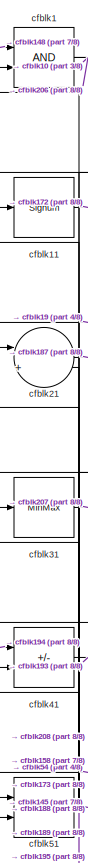
[diagram: root canvas - part 1/8, top left region]
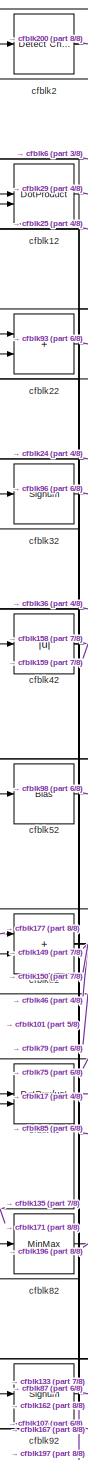
[diagram: root canvas - part 2/8, top left region]
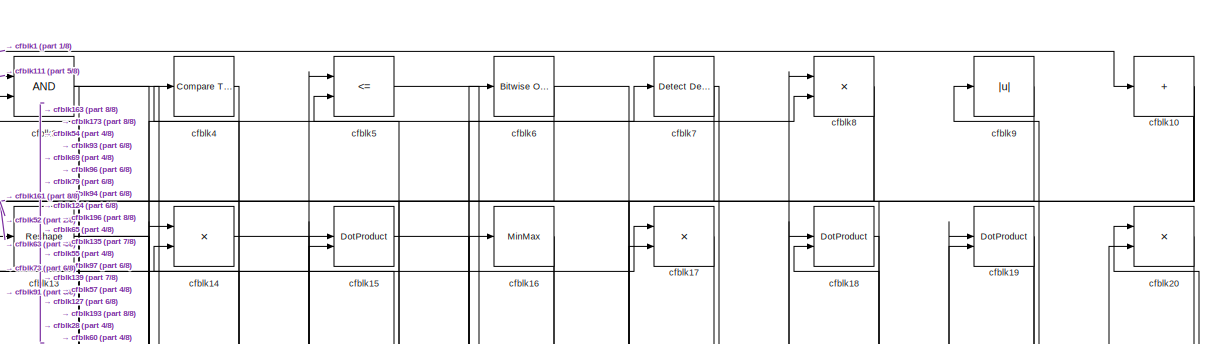
[diagram: root canvas - part 3/8, full width, top band]
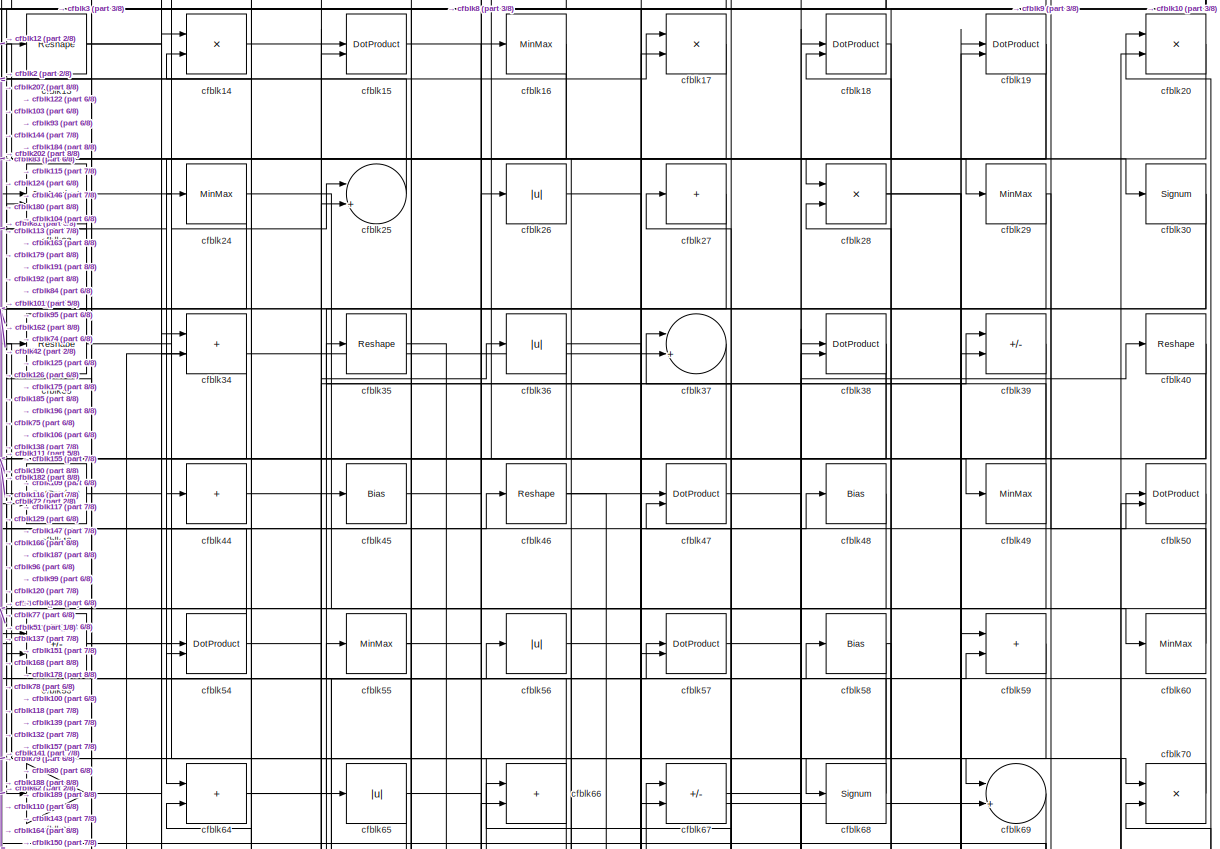
[diagram: root canvas - part 4/8, full width, top band]
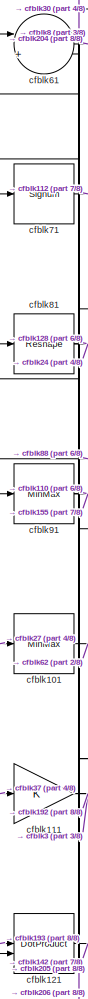
[diagram: root canvas - part 5/8, middle left region]
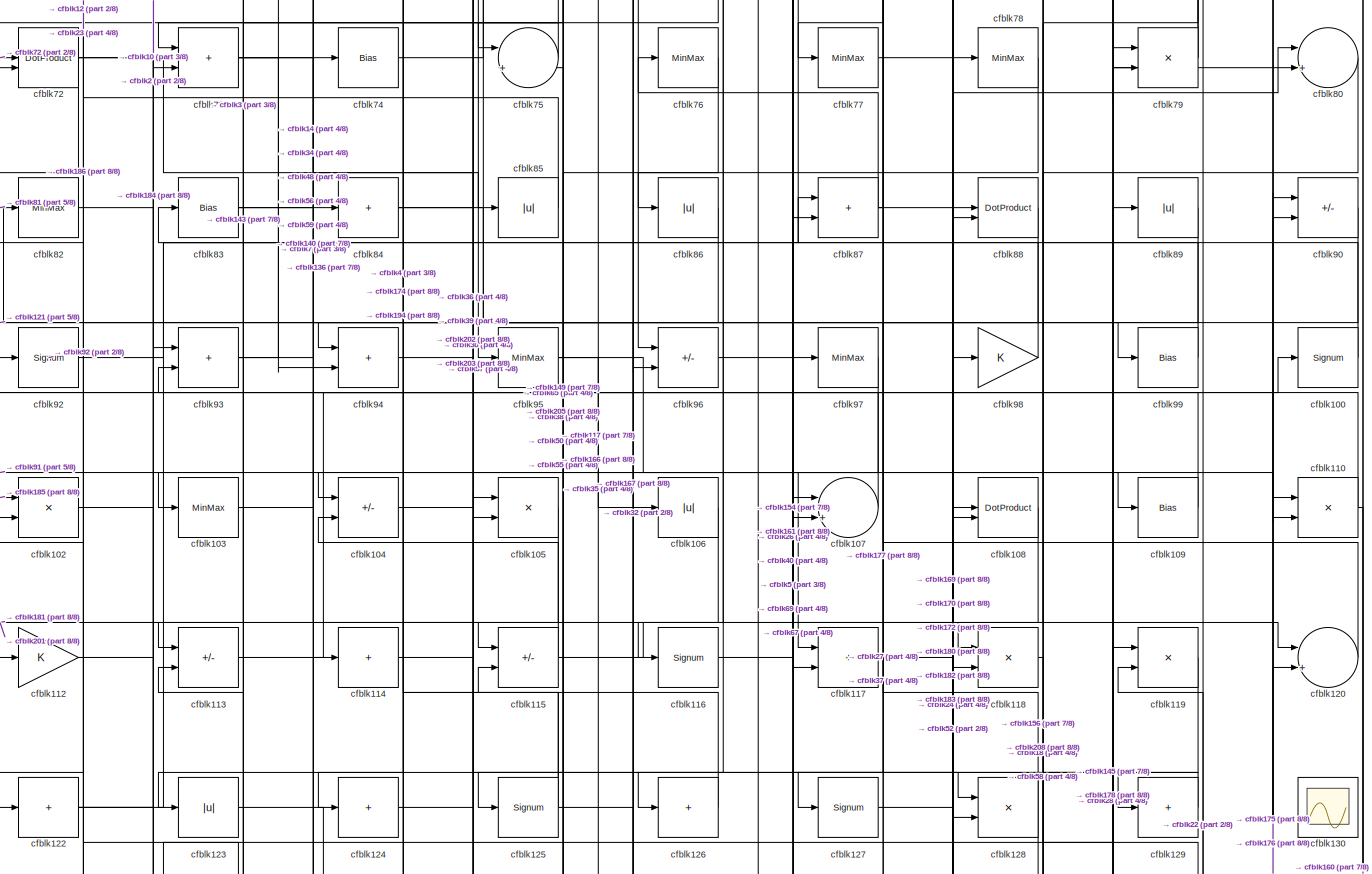
[diagram: root canvas - part 6/8, full width, middle band]
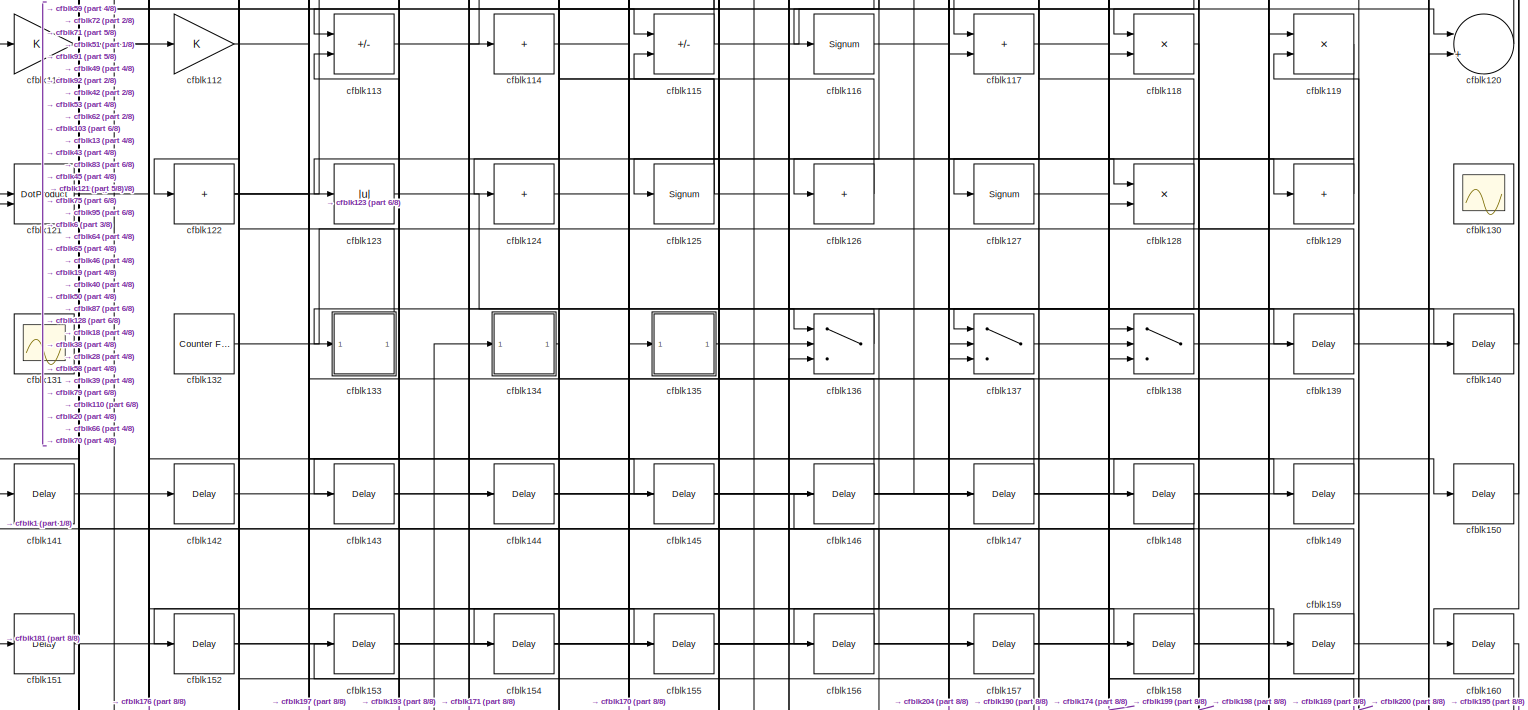
[diagram: root canvas - part 7/8, full width, middle band]
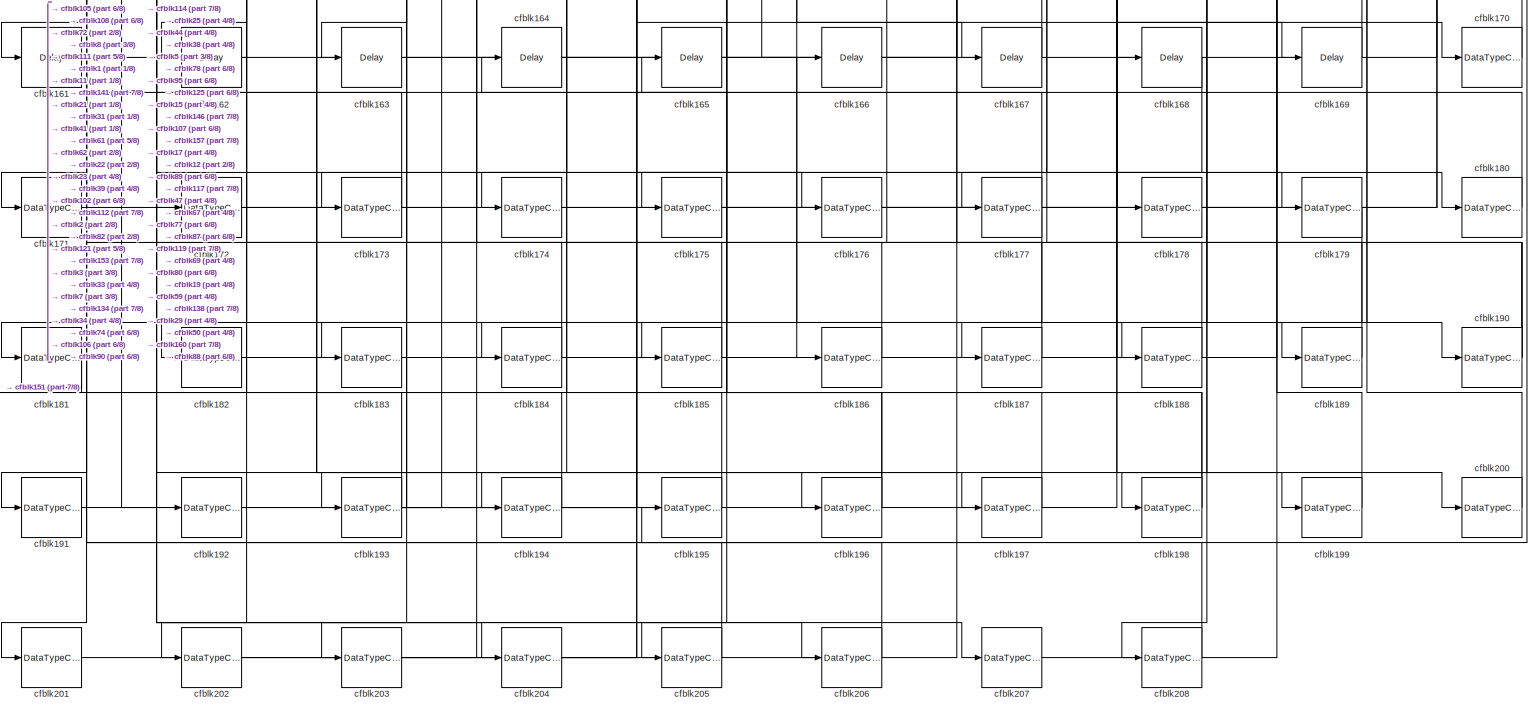
[diagram: root canvas - part 8/8, full width, bottom band]
MODEL slx_f1751e202889
KIND model
CONFIG AbsTol = auto
CONFIG EnableMultiTasking = off
CONFIG FixedStep = auto
CONFIG MaxStep = auto
CONFIG MinStep = auto
CONFIG RelTol = 1e-3
CONFIG SampleTimeConstraint = Unconstrained
CONFIG SolverName = VariableStepAuto
CONFIG StartTime = 0.0
CONFIG StopTime = 10.0
BLOCK [Logic] cfblk1
  AllPortsSameDT = off
  OutDataTypeStr = boolean
BLOCK [Sum] cfblk10
  IconShape = rectangular
  Inputs = +
BLOCK [Signum] cfblk100
BLOCK [MinMax] cfblk101
BLOCK [Product] cfblk102
  Inputs = */
  RndMeth = Zero
  SaturateOnIntegerOverflow = on
BLOCK [MinMax] cfblk103
BLOCK [Sum] cfblk104
  IconShape = rectangular
  Inputs = +-
BLOCK [Product] cfblk105
  Inputs = */
  RndMeth = Zero
  SaturateOnIntegerOverflow = on
BLOCK [Abs] cfblk106
  SaturateOnIntegerOverflow = off
BLOCK [Sum] cfblk107
  Inputs = |++
BLOCK [DotProduct] cfblk108
  OutDataTypeStr = Inherit: Inherit via internal rule
BLOCK [Bias] cfblk109
  Bias = 0.0
  SaturateOnIntegerOverflow = off
BLOCK [Signum] cfblk11
BLOCK [Product] cfblk110
  Inputs = */
  RndMeth = Zero
  SaturateOnIntegerOverflow = on
BLOCK [Gain] cfblk111
BLOCK [Gain] cfblk112
BLOCK [Sum] cfblk113
  IconShape = rectangular
  Inputs = +-
BLOCK [Sum] cfblk114
  IconShape = rectangular
  Inputs = +
BLOCK [Sum] cfblk115
  IconShape = rectangular
  Inputs = +-
BLOCK [Signum] cfblk116
BLOCK [Sum] cfblk117
  IconShape = rectangular
BLOCK [Product] cfblk118
  Inputs = */
  RndMeth = Zero
  SaturateOnIntegerOverflow = on
BLOCK [Product] cfblk119
  Inputs = */
  RndMeth = Zero
  SaturateOnIntegerOverflow = on
BLOCK [DotProduct] cfblk12
  OutDataTypeStr = Inherit: Inherit via internal rule
BLOCK [Sum] cfblk120
  Inputs = |++
BLOCK [DotProduct] cfblk121
  OutDataTypeStr = Inherit: Inherit via internal rule
BLOCK [Sum] cfblk122
  IconShape = rectangular
  Inputs = +
BLOCK [Abs] cfblk123
  SaturateOnIntegerOverflow = off
BLOCK [Sum] cfblk124
  IconShape = rectangular
  Inputs = +
BLOCK [Signum] cfblk125
BLOCK [Sum] cfblk126
  IconShape = rectangular
  Inputs = +
BLOCK [Signum] cfblk127
BLOCK [Product] cfblk128
  Inputs = */
  RndMeth = Zero
  SaturateOnIntegerOverflow = on
BLOCK [Sum] cfblk129
  IconShape = rectangular
  Inputs = +
BLOCK [Reshape] cfblk13
BLOCK [Scope] cfblk130
  Floating = on
  NumInputPorts = 1
  ScopeSpecificationString = Simulink.scopes.TimeScopeBlockCfg('CurrentConfiguration', extmgr.ConfigurationSet(extmgr.Configuration('Core','General UI',true,'FigureColor',[0.156862745098039 0.156862745098039 0.156862745098039]),extmgr.Configuration('Core','Source UI',true),extmgr.Configuration('Sources','WiredSimulink',true,'DataLoggingVariableName','ScopeData1','DataLoggingSaveFormat','StructureWithTime','DataLoggingLimitDat...<+2713ch>
BLOCK [Scope] cfblk131
  Floating = on
  NumInputPorts = 1
  ScopeSpecificationString = Simulink.scopes.TimeScopeBlockCfg('CurrentConfiguration', extmgr.ConfigurationSet(extmgr.Configuration('Core','General UI',true,'FigureColor',[0.156862745098039 0.156862745098039 0.156862745098039]),extmgr.Configuration('Core','Source UI',true),extmgr.Configuration('Sources','WiredSimulink',true,'DataLoggingVariableName','ScopeData1','DataLoggingSaveFormat','StructureWithTime','DataLoggingLimitDat...<+2713ch>
BLOCK [Reference] cfblk132  REF=hdlsllib/Sources/Counter
Free-Running
  SourceBlock = hdlsllib/Sources/Counter\nFree-Running
  SourceType = Counter Free-Running
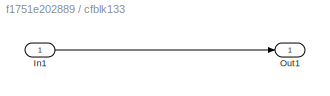
BLOCK [SubSystem] cfblk133
  LibrarySourceBlock = hdlsllib/Ports &\nSubsystems/Subsystem
BLOCK [Inport] cfblk133/In1
BLOCK [Outport] cfblk133/Out1
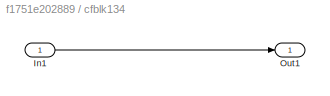
BLOCK [SubSystem] cfblk134
  LibrarySourceBlock = hdlsllib/Ports &\nSubsystems/Subsystem
BLOCK [Inport] cfblk134/In1
BLOCK [Outport] cfblk134/Out1
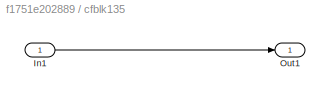
BLOCK [SubSystem] cfblk135
  LibrarySourceBlock = hdlsllib/Ports &\nSubsystems/Subsystem
BLOCK [Inport] cfblk135/In1
BLOCK [Outport] cfblk135/Out1
BLOCK [Switch] cfblk136
  InputSameDT = off
  SaturateOnIntegerOverflow = off
BLOCK [Switch] cfblk137
  InputSameDT = off
  SaturateOnIntegerOverflow = off
BLOCK [Switch] cfblk138
  InputSameDT = off
  SaturateOnIntegerOverflow = off
BLOCK [Delay] cfblk139
  InputPortMap = u0
  SampleTime = 1
BLOCK [Product] cfblk14
  Inputs = */
  RndMeth = Zero
  SaturateOnIntegerOverflow = on
BLOCK [Delay] cfblk140
  InputPortMap = u0
  SampleTime = 1
BLOCK [Delay] cfblk141
  InputPortMap = u0
  SampleTime = 1
BLOCK [Delay] cfblk142
  InputPortMap = u0
  SampleTime = 1
BLOCK [Delay] cfblk143
  InputPortMap = u0
  SampleTime = 1
BLOCK [Delay] cfblk144
  InputPortMap = u0
  SampleTime = 1
BLOCK [Delay] cfblk145
  InputPortMap = u0
  SampleTime = 1
BLOCK [Delay] cfblk146
  InputPortMap = u0
  SampleTime = 1
BLOCK [Delay] cfblk147
  InputPortMap = u0
  SampleTime = 1
BLOCK [Delay] cfblk148
  InputPortMap = u0
  SampleTime = 1
BLOCK [Delay] cfblk149
  InputPortMap = u0
  SampleTime = 1
BLOCK [DotProduct] cfblk15
  OutDataTypeStr = Inherit: Inherit via internal rule
BLOCK [Delay] cfblk150
  InputPortMap = u0
  SampleTime = 1
BLOCK [Delay] cfblk151
  InputPortMap = u0
  SampleTime = 1
BLOCK [Delay] cfblk152
  InputPortMap = u0
  SampleTime = 1
BLOCK [Delay] cfblk153
  InputPortMap = u0
  SampleTime = 1
BLOCK [Delay] cfblk154
  InputPortMap = u0
  SampleTime = 1
BLOCK [Delay] cfblk155
  InputPortMap = u0
  SampleTime = 1
BLOCK [Delay] cfblk156
  InputPortMap = u0
  SampleTime = 1
BLOCK [Delay] cfblk157
  InputPortMap = u0
  SampleTime = 1
BLOCK [Delay] cfblk158
  InputPortMap = u0
  SampleTime = 1
BLOCK [Delay] cfblk159
  InputPortMap = u0
  SampleTime = 1
BLOCK [MinMax] cfblk16
BLOCK [Delay] cfblk160
  InputPortMap = u0
  SampleTime = 1
BLOCK [Delay] cfblk161
  InputPortMap = u0
  SampleTime = 1
BLOCK [Delay] cfblk162
  InputPortMap = u0
  SampleTime = 1
BLOCK [Delay] cfblk163
  InputPortMap = u0
  SampleTime = 1
BLOCK [Delay] cfblk164
  InputPortMap = u0
  SampleTime = 1
BLOCK [Delay] cfblk165
  InputPortMap = u0
  SampleTime = 1
BLOCK [Delay] cfblk166
  InputPortMap = u0
  SampleTime = 1
BLOCK [Delay] cfblk167
  InputPortMap = u0
  SampleTime = 1
BLOCK [Delay] cfblk168
  InputPortMap = u0
  SampleTime = 1
BLOCK [Delay] cfblk169
  InputPortMap = u0
  SampleTime = 1
BLOCK [Product] cfblk17
  Inputs = */
  RndMeth = Zero
  SaturateOnIntegerOverflow = on
BLOCK [DataTypeConversion] cfblk170
  OutDataTypeStr = uint8
  RndMeth = Floor
  SaturateOnIntegerOverflow = off
BLOCK [DataTypeConversion] cfblk171
  OutDataTypeStr = uint8
  RndMeth = Floor
  SaturateOnIntegerOverflow = off
BLOCK [DataTypeConversion] cfblk172
  OutDataTypeStr = uint8
  RndMeth = Floor
  SaturateOnIntegerOverflow = off
BLOCK [DataTypeConversion] cfblk173
  OutDataTypeStr = uint8
  RndMeth = Floor
  SaturateOnIntegerOverflow = off
BLOCK [DataTypeConversion] cfblk174
  OutDataTypeStr = uint8
  RndMeth = Floor
  SaturateOnIntegerOverflow = off
BLOCK [DataTypeConversion] cfblk175
  OutDataTypeStr = uint8
  RndMeth = Floor
  SaturateOnIntegerOverflow = off
BLOCK [DataTypeConversion] cfblk176
  OutDataTypeStr = uint8
  RndMeth = Floor
  SaturateOnIntegerOverflow = off
BLOCK [DataTypeConversion] cfblk177
  RndMeth = Floor
  SaturateOnIntegerOverflow = off
BLOCK [DataTypeConversion] cfblk178
  OutDataTypeStr = uint8
  RndMeth = Floor
  SaturateOnIntegerOverflow = off
BLOCK [DataTypeConversion] cfblk179
  OutDataTypeStr = uint8
  RndMeth = Floor
  SaturateOnIntegerOverflow = off
BLOCK [DotProduct] cfblk18
  OutDataTypeStr = Inherit: Inherit via internal rule
BLOCK [DataTypeConversion] cfblk180
  OutDataTypeStr = uint8
  RndMeth = Floor
  SaturateOnIntegerOverflow = off
BLOCK [DataTypeConversion] cfblk181
  OutDataTypeStr = uint8
  RndMeth = Floor
  SaturateOnIntegerOverflow = off
BLOCK [DataTypeConversion] cfblk182
  OutDataTypeStr = uint8
  RndMeth = Floor
  SaturateOnIntegerOverflow = off
BLOCK [DataTypeConversion] cfblk183
  OutDataTypeStr = uint8
  RndMeth = Floor
  SaturateOnIntegerOverflow = off
BLOCK [DataTypeConversion] cfblk184
  RndMeth = Floor
  SaturateOnIntegerOverflow = off
BLOCK [DataTypeConversion] cfblk185
  OutDataTypeStr = uint8
  RndMeth = Floor
  SaturateOnIntegerOverflow = off
BLOCK [DataTypeConversion] cfblk186
  OutDataTypeStr = uint8
  RndMeth = Floor
  SaturateOnIntegerOverflow = off
BLOCK [DataTypeConversion] cfblk187
  OutDataTypeStr = uint8
  RndMeth = Floor
  SaturateOnIntegerOverflow = off
BLOCK [DataTypeConversion] cfblk188
  OutDataTypeStr = uint8
  RndMeth = Floor
  SaturateOnIntegerOverflow = off
BLOCK [DataTypeConversion] cfblk189
  OutDataTypeStr = uint8
  RndMeth = Floor
  SaturateOnIntegerOverflow = off
BLOCK [DotProduct] cfblk19
  OutDataTypeStr = Inherit: Inherit via internal rule
BLOCK [DataTypeConversion] cfblk190
  RndMeth = Floor
  SaturateOnIntegerOverflow = off
BLOCK [DataTypeConversion] cfblk191
  OutDataTypeStr = uint8
  RndMeth = Floor
  SaturateOnIntegerOverflow = off
BLOCK [DataTypeConversion] cfblk192
  OutDataTypeStr = uint8
  RndMeth = Floor
  SaturateOnIntegerOverflow = off
BLOCK [DataTypeConversion] cfblk193
  RndMeth = Floor
  SaturateOnIntegerOverflow = off
BLOCK [DataTypeConversion] cfblk194
  OutDataTypeStr = uint8
  RndMeth = Floor
  SaturateOnIntegerOverflow = off
BLOCK [DataTypeConversion] cfblk195
  OutDataTypeStr = uint8
  RndMeth = Floor
  SaturateOnIntegerOverflow = off
BLOCK [DataTypeConversion] cfblk196
  RndMeth = Floor
  SaturateOnIntegerOverflow = off
BLOCK [DataTypeConversion] cfblk197
  OutDataTypeStr = uint8
  RndMeth = Floor
  SaturateOnIntegerOverflow = off
BLOCK [DataTypeConversion] cfblk198
  RndMeth = Floor
  SaturateOnIntegerOverflow = off
BLOCK [DataTypeConversion] cfblk199
  OutDataTypeStr = uint8
  RndMeth = Floor
  SaturateOnIntegerOverflow = off
BLOCK [Reference] cfblk2  REF=simulink/Logic and Bit
Operations/Detect
Change
  LibrarySourceBlock = hdlsllib/Logic and Bit\nOperations/Detect\nChange
  SourceBlock = simulink/Logic and Bit\nOperations/Detect\nChange
  SourceType = Detect Change
BLOCK [Product] cfblk20
  Inputs = */
  RndMeth = Zero
  SaturateOnIntegerOverflow = on
BLOCK [DataTypeConversion] cfblk200
  OutDataTypeStr = uint8
  RndMeth = Floor
  SaturateOnIntegerOverflow = off
BLOCK [DataTypeConversion] cfblk201
  OutDataTypeStr = uint8
  RndMeth = Floor
  SaturateOnIntegerOverflow = off
BLOCK [DataTypeConversion] cfblk202
  OutDataTypeStr = uint8
  RndMeth = Floor
  SaturateOnIntegerOverflow = off
BLOCK [DataTypeConversion] cfblk203
  OutDataTypeStr = uint8
  RndMeth = Floor
  SaturateOnIntegerOverflow = off
BLOCK [DataTypeConversion] cfblk204
  OutDataTypeStr = uint8
  RndMeth = Floor
  SaturateOnIntegerOverflow = off
BLOCK [DataTypeConversion] cfblk205
  OutDataTypeStr = uint8
  RndMeth = Floor
  SaturateOnIntegerOverflow = off
BLOCK [DataTypeConversion] cfblk206
  OutDataTypeStr = uint8
  RndMeth = Floor
  SaturateOnIntegerOverflow = off
BLOCK [DataTypeConversion] cfblk207
  OutDataTypeStr = uint8
  RndMeth = Floor
  SaturateOnIntegerOverflow = off
BLOCK [DataTypeConversion] cfblk208
  OutDataTypeStr = uint8
  RndMeth = Floor
  SaturateOnIntegerOverflow = off
BLOCK [Sum] cfblk21
  Inputs = |++
BLOCK [Sum] cfblk22
  IconShape = rectangular
BLOCK [DotProduct] cfblk23
  OutDataTypeStr = Inherit: Inherit via internal rule
BLOCK [MinMax] cfblk24
BLOCK [Sum] cfblk25
  Inputs = |++
BLOCK [Abs] cfblk26
  SaturateOnIntegerOverflow = off
BLOCK [Sum] cfblk27
  IconShape = rectangular
  Inputs = +
BLOCK [Product] cfblk28
  Inputs = */
  RndMeth = Zero
  SaturateOnIntegerOverflow = on
BLOCK [MinMax] cfblk29
BLOCK [Logic] cfblk3
  AllPortsSameDT = off
  OutDataTypeStr = boolean
BLOCK [Signum] cfblk30
BLOCK [MinMax] cfblk31
BLOCK [Signum] cfblk32
BLOCK [Reshape] cfblk33
BLOCK [Sum] cfblk34
  IconShape = rectangular
BLOCK [Reshape] cfblk35
BLOCK [Abs] cfblk36
  SaturateOnIntegerOverflow = off
BLOCK [Sum] cfblk37
  Inputs = |++
BLOCK [DotProduct] cfblk38
  OutDataTypeStr = Inherit: Inherit via internal rule
BLOCK [Sum] cfblk39
  IconShape = rectangular
  Inputs = +-
BLOCK [Reference] cfblk4  REF=hdlsllib/Logic and Bit
Operations/Compare
To Constant
  SourceBlock = hdlsllib/Logic and Bit\nOperations/Compare\nTo Constant
  SourceType = Compare To Constant
BLOCK [Reshape] cfblk40
BLOCK [Sum] cfblk41
  IconShape = rectangular
  Inputs = +-
BLOCK [Abs] cfblk42
  SaturateOnIntegerOverflow = off
BLOCK [DotProduct] cfblk43
  OutDataTypeStr = Inherit: Inherit via internal rule
BLOCK [Sum] cfblk44
  IconShape = rectangular
  Inputs = +
BLOCK [Bias] cfblk45
  Bias = 0.0
  SaturateOnIntegerOverflow = off
BLOCK [Reshape] cfblk46
BLOCK [DotProduct] cfblk47
  OutDataTypeStr = Inherit: Inherit via internal rule
BLOCK [Bias] cfblk48
  Bias = 0.0
  SaturateOnIntegerOverflow = off
BLOCK [MinMax] cfblk49
BLOCK [RelationalOperator] cfblk5
  InputSameDT = off
  Operator = <=
  OutDataTypeStr = boolean
BLOCK [DotProduct] cfblk50
  OutDataTypeStr = Inherit: Inherit via internal rule
BLOCK [Product] cfblk51
  Inputs = */
  RndMeth = Zero
  SaturateOnIntegerOverflow = on
BLOCK [Bias] cfblk52
  Bias = 0.0
  SaturateOnIntegerOverflow = off
BLOCK [Sum] cfblk53
  IconShape = rectangular
  Inputs = +-
BLOCK [DotProduct] cfblk54
  OutDataTypeStr = Inherit: Inherit via internal rule
BLOCK [MinMax] cfblk55
BLOCK [Abs] cfblk56
  SaturateOnIntegerOverflow = off
BLOCK [DotProduct] cfblk57
  OutDataTypeStr = Inherit: Inherit via internal rule
BLOCK [Bias] cfblk58
  Bias = 0.0
  SaturateOnIntegerOverflow = off
BLOCK [Sum] cfblk59
  IconShape = rectangular
BLOCK [Reference] cfblk6  REF=simulink/Logic and Bit
Operations/Bitwise
Operator
  LibrarySourceBlock = hdlsllib/Logic and Bit\nOperations/Bitwise\nOperator
  SourceBlock = simulink/Logic and Bit\nOperations/Bitwise\nOperator
  SourceType = Bitwise Operator
BLOCK [MinMax] cfblk60
BLOCK [Sum] cfblk61
  Inputs = |++
BLOCK [Sum] cfblk62
  IconShape = rectangular
BLOCK [Gain] cfblk63
BLOCK [Sum] cfblk64
  IconShape = rectangular
BLOCK [Abs] cfblk65
  SaturateOnIntegerOverflow = off
BLOCK [Sum] cfblk66
  IconShape = rectangular
BLOCK [Sum] cfblk67
  IconShape = rectangular
  Inputs = +-
BLOCK [Signum] cfblk68
BLOCK [Sum] cfblk69
  Inputs = |++
BLOCK [Reference] cfblk7  REF=simulink/Logic and Bit
Operations/Detect
Decrease
  LibrarySourceBlock = hdlsllib/Logic and Bit\nOperations/Detect\nDecrease
  SourceBlock = simulink/Logic and Bit\nOperations/Detect\nDecrease
  SourceType = Detect Decrease
BLOCK [Product] cfblk70
  Inputs = */
  RndMeth = Zero
  SaturateOnIntegerOverflow = on
BLOCK [Signum] cfblk71
BLOCK [DotProduct] cfblk72
  OutDataTypeStr = Inherit: Inherit via internal rule
BLOCK [Sum] cfblk73
  IconShape = rectangular
BLOCK [Bias] cfblk74
  Bias = 0.0
  SaturateOnIntegerOverflow = off
BLOCK [Sum] cfblk75
  Inputs = |++
BLOCK [MinMax] cfblk76
BLOCK [MinMax] cfblk77
BLOCK [MinMax] cfblk78
BLOCK [Product] cfblk79
  Inputs = */
  RndMeth = Zero
  SaturateOnIntegerOverflow = on
BLOCK [Product] cfblk8
  Inputs = */
  RndMeth = Zero
  SaturateOnIntegerOverflow = on
BLOCK [Sum] cfblk80
  Inputs = |++
BLOCK [Reshape] cfblk81
BLOCK [MinMax] cfblk82
BLOCK [Bias] cfblk83
  Bias = 0.0
  SaturateOnIntegerOverflow = off
BLOCK [Sum] cfblk84
  IconShape = rectangular
  Inputs = +
BLOCK [Abs] cfblk85
  SaturateOnIntegerOverflow = off
BLOCK [Abs] cfblk86
  SaturateOnIntegerOverflow = off
BLOCK [Sum] cfblk87
  IconShape = rectangular
BLOCK [DotProduct] cfblk88
  OutDataTypeStr = Inherit: Inherit via internal rule
BLOCK [Abs] cfblk89
  SaturateOnIntegerOverflow = off
BLOCK [Abs] cfblk9
  SaturateOnIntegerOverflow = off
BLOCK [Sum] cfblk90
  IconShape = rectangular
  Inputs = +-
BLOCK [MinMax] cfblk91
BLOCK [Signum] cfblk92
BLOCK [Sum] cfblk93
  IconShape = rectangular
BLOCK [Sum] cfblk94
  IconShape = rectangular
BLOCK [MinMax] cfblk95
BLOCK [Sum] cfblk96
  IconShape = rectangular
  Inputs = +-
BLOCK [MinMax] cfblk97
BLOCK [Gain] cfblk98
BLOCK [Bias] cfblk99
  Bias = 0.0
  SaturateOnIntegerOverflow = off
LINE cfblk100:1 -> cfblk18:2
LINE cfblk101:1 -> cfblk62:2
LINE cfblk102:1 -> cfblk184:1
NET cfblk103:1 -> cfblk100:1, cfblk143:1
LINE cfblk104:1 -> cfblk39:1
LINE cfblk105:1 -> cfblk201:1
LINE cfblk106:1 -> cfblk194:1
LINE cfblk107:1 -> cfblk12:1
LINE cfblk108:1 -> cfblk181:1
LINE cfblk109:1 -> cfblk93:2
NET cfblk10:1 -> cfblk28:1, cfblk57:2, cfblk65:1, cfblk73:2
NET cfblk110:1 -> cfblk160:1, cfblk81:1
NET cfblk111:1 -> cfblk192:1, cfblk3:1
LINE cfblk112:1 -> cfblk197:1
LINE cfblk113:1 -> cfblk45:1
LINE cfblk114:1 -> cfblk170:1
NET cfblk115:1 -> cfblk120:1, cfblk54:2
LINE cfblk116:1 -> cfblk50:1
LINE cfblk117:1 -> cfblk199:1
LINE cfblk118:1 -> cfblk148:1
LINE cfblk119:1 -> cfblk198:1
LINE cfblk11:1 -> cfblk172:1
LINE cfblk120:1 -> cfblk66:1
LINE cfblk121:1 -> cfblk142:1
NET cfblk122:1 -> cfblk14:1, cfblk48:1, cfblk56:1
LINE cfblk123:1 -> cfblk136:1
LINE cfblk124:1 -> cfblk5:1
NET cfblk125:1 -> cfblk104:2, cfblk14:2, cfblk167:1
LINE cfblk126:1 -> cfblk55:1
LINE cfblk127:1 -> cfblk80:1
NET cfblk128:1 -> cfblk156:1, cfblk27:1
LINE cfblk129:1 -> cfblk123:1
LINE cfblk12:1 -> cfblk29:1
LINE cfblk132:1 -> cfblk39:2
LINE cfblk133/In1:1 -> cfblk133/Out1:1
LINE cfblk133:1 -> cfblk92:1
LINE cfblk134/In1:1 -> cfblk134/Out1:1
LINE cfblk134:1 -> cfblk154:1
LINE cfblk135/In1:1 -> cfblk135/Out1:1
LINE cfblk135:1 -> cfblk6:1
LINE cfblk136:1 -> cfblk133:1
LINE cfblk137:1 -> cfblk38:1
LINE cfblk138:1 -> cfblk20:1
LINE cfblk139:1 -> cfblk28:2
NET cfblk13:1 -> cfblk115:1, cfblk60:1
LINE cfblk140:1 -> cfblk137:1
LINE cfblk141:1 -> cfblk176:1
LINE cfblk142:1 -> cfblk137:2
LINE cfblk143:1 -> cfblk20:2
LINE cfblk144:1 -> cfblk18:1
LINE cfblk145:1 -> cfblk79:2
LINE cfblk146:1 -> cfblk64:2
LINE cfblk147:1 -> cfblk53:1
LINE cfblk148:1 -> cfblk1:1
LINE cfblk149:1 -> cfblk75:2
LINE cfblk14:1 -> cfblk30:1
LINE cfblk150:1 -> cfblk70:2
LINE cfblk151:1 -> cfblk38:2
LINE cfblk152:1 -> cfblk120:2
LINE cfblk153:1 -> cfblk136:3
LINE cfblk154:1 -> cfblk87:2
LINE cfblk155:1 -> cfblk66:2
LINE cfblk156:1 -> cfblk115:2
LINE cfblk157:1 -> cfblk19:1
LINE cfblk158:1 -> cfblk1:2
LINE cfblk159:1 -> cfblk113:2
LINE cfblk15:1 -> cfblk190:1
LINE cfblk160:1 -> cfblk195:1
LINE cfblk161:1 -> cfblk107:2
LINE cfblk162:1 -> cfblk22:2
LINE cfblk163:1 -> cfblk25:2
LINE cfblk164:1 -> cfblk50:2
LINE cfblk165:1 -> cfblk186:1
LINE cfblk166:1 -> cfblk17:2
LINE cfblk167:1 -> cfblk12:2
LINE cfblk168:1 -> cfblk203:1
LINE cfblk169:1 -> cfblk138:1
NET cfblk16:1 -> cfblk43:2, cfblk54:1
LINE cfblk170:1 -> cfblk88:1
LINE cfblk171:1 -> cfblk114:1
LINE cfblk172:1 -> cfblk88:2
LINE cfblk173:1 -> cfblk11:1
LINE cfblk174:1 -> cfblk138:2
LINE cfblk175:1 -> cfblk90:1
LINE cfblk176:1 -> cfblk90:2
NET cfblk177:1 -> cfblk183:1, cfblk62:1
LINE cfblk178:1 -> cfblk89:1
LINE cfblk179:1 -> cfblk191:1
LINE cfblk17:1 -> cfblk202:1
LINE cfblk180:1 -> cfblk44:1
LINE cfblk181:1 -> cfblk151:1
LINE cfblk182:1 -> cfblk108:1
LINE cfblk183:1 -> cfblk108:2
NET cfblk184:1 -> cfblk34:1, cfblk59:1
LINE cfblk185:1 -> cfblk102:1
LINE cfblk186:1 -> cfblk102:2
LINE cfblk187:1 -> cfblk47:1
LINE cfblk188:1 -> cfblk21:1
LINE cfblk189:1 -> cfblk21:2
LINE cfblk18:1 -> cfblk68:1
NET cfblk190:1 -> cfblk146:1, cfblk33:1, cfblk47:2
LINE cfblk191:1 -> cfblk15:1
LINE cfblk192:1 -> cfblk15:2
NET cfblk193:1 -> cfblk121:1, cfblk134:1, cfblk153:1, cfblk8:1
LINE cfblk194:1 -> cfblk41:1
LINE cfblk195:1 -> cfblk41:2
NET cfblk196:1 -> cfblk23:1, cfblk5:2
LINE cfblk197:1 -> cfblk82:1
NET cfblk198:1 -> cfblk164:1, cfblk165:1
LINE cfblk199:1 -> cfblk119:1
NET cfblk19:1 -> cfblk137:3, cfblk51:2
NET cfblk1:1 -> cfblk10:1, cfblk206:1
LINE cfblk200:1 -> cfblk119:2
LINE cfblk201:1 -> cfblk74:1
LINE cfblk202:1 -> cfblk105:1
LINE cfblk203:1 -> cfblk105:2
LINE cfblk204:1 -> cfblk157:1
LINE cfblk205:1 -> cfblk61:1
LINE cfblk206:1 -> cfblk61:2
LINE cfblk207:1 -> cfblk19:2
LINE cfblk208:1 -> cfblk31:1
LINE cfblk20:1 -> cfblk116:1
LINE cfblk21:1 -> cfblk187:1
LINE cfblk22:1 -> cfblk93:1
NET cfblk23:1 -> cfblk110:1, cfblk162:1
NET cfblk24:1 -> cfblk42:1, cfblk78:1
LINE cfblk25:1 -> cfblk2:1
LINE cfblk26:1 -> cfblk129:1
LINE cfblk27:1 -> cfblk101:1
NET cfblk28:1 -> cfblk79:1, cfblk80:2
NET cfblk29:1 -> cfblk185:1, cfblk189:1
NET cfblk2:1 -> cfblk107:1, cfblk200:1
NET cfblk30:1 -> cfblk71:1, cfblk95:1
LINE cfblk31:1 -> cfblk207:1
LINE cfblk32:1 -> cfblk96:1
NET cfblk33:1 -> cfblk23:2, cfblk49:1
LINE cfblk34:1 -> cfblk64:1
LINE cfblk35:1 -> cfblk106:1
NET cfblk36:1 -> cfblk109:1, cfblk72:2
LINE cfblk37:1 -> cfblk111:1
NET cfblk38:1 -> cfblk124:1, cfblk175:1
LINE cfblk39:1 -> cfblk182:1
NET cfblk3:1 -> cfblk163:1, cfblk69:1, cfblk96:2
NET cfblk40:1 -> cfblk103:1, cfblk117:2
LINE cfblk41:1 -> cfblk193:1
NET cfblk42:1 -> cfblk158:1, cfblk159:1
LINE cfblk43:1 -> cfblk144:1
LINE cfblk44:1 -> cfblk179:1
LINE cfblk45:1 -> cfblk16:1
NET cfblk46:1 -> cfblk118:2, cfblk147:1
LINE cfblk47:1 -> cfblk178:1
LINE cfblk48:1 -> cfblk126:1
NET cfblk49:1 -> cfblk152:1, cfblk35:1
LINE cfblk4:1 -> cfblk94:1
LINE cfblk50:1 -> cfblk75:1
LINE cfblk51:1 -> cfblk145:1
LINE cfblk52:1 -> cfblk98:1
NET cfblk53:1 -> cfblk25:1, cfblk37:2
NET cfblk54:1 -> cfblk3:2, cfblk51:1, cfblk70:1
NET cfblk55:1 -> cfblk125:1, cfblk8:2
LINE cfblk56:1 -> cfblk67:2
LINE cfblk57:1 -> cfblk40:1
NET cfblk58:1 -> cfblk118:1, cfblk77:1
LINE cfblk59:1 -> cfblk141:1
LINE cfblk5:1 -> cfblk97:1
LINE cfblk60:1 -> cfblk9:1
LINE cfblk61:1 -> cfblk204:1
NET cfblk62:1 -> cfblk149:1, cfblk150:1, cfblk46:1
LINE cfblk63:1 -> cfblk58:1
NET cfblk64:1 -> cfblk136:2, cfblk26:1
NET cfblk65:1 -> cfblk138:3, cfblk73:1
NET cfblk66:1 -> cfblk113:1, cfblk43:1
LINE cfblk67:1 -> cfblk168:1
LINE cfblk68:1 -> cfblk13:1
LINE cfblk69:1 -> cfblk188:1
NET cfblk6:1 -> cfblk139:1, cfblk52:1
LINE cfblk70:1 -> cfblk53:2
LINE cfblk71:1 -> cfblk112:1
NET cfblk72:1 -> cfblk135:1, cfblk171:1, cfblk17:1
NET cfblk73:1 -> cfblk84:1, cfblk85:1, cfblk94:2
LINE cfblk74:1 -> cfblk57:1
LINE cfblk75:1 -> cfblk72:1
LINE cfblk76:1 -> cfblk86:1
LINE cfblk77:1 -> cfblk169:1
LINE cfblk78:1 -> cfblk205:1
NET cfblk79:1 -> cfblk22:1, cfblk4:1
NET cfblk7:1 -> cfblk127:1, cfblk173:1
LINE cfblk80:1 -> cfblk208:1
NET cfblk81:1 -> cfblk128:2, cfblk24:1
LINE cfblk82:1 -> cfblk196:1
NET cfblk83:1 -> cfblk140:1, cfblk59:2
NET cfblk84:1 -> cfblk36:1, cfblk99:1
LINE cfblk85:1 -> cfblk32:1
LINE cfblk86:1 -> cfblk122:1
NET cfblk87:1 -> cfblk180:1, cfblk37:1, cfblk76:1
LINE cfblk88:1 -> cfblk121:2
LINE cfblk89:1 -> cfblk177:1
NET cfblk8:1 -> cfblk161:1, cfblk91:1
LINE cfblk90:1 -> cfblk174:1
NET cfblk91:1 -> cfblk110:2, cfblk155:1
LINE cfblk92:1 -> cfblk87:1
NET cfblk93:1 -> cfblk34:2, cfblk7:1
LINE cfblk94:1 -> cfblk128:1
NET cfblk95:1 -> cfblk117:1, cfblk166:1
LINE cfblk96:1 -> cfblk69:2
LINE cfblk97:1 -> cfblk104:1
LINE cfblk98:1 -> cfblk83:1
LINE cfblk99:1 -> cfblk67:1
LINE cfblk9:1 -> cfblk63:1
note: NET lines group one-source signal fan-out (src -> all destinations, sorted); 1:1 wires keep LINE
